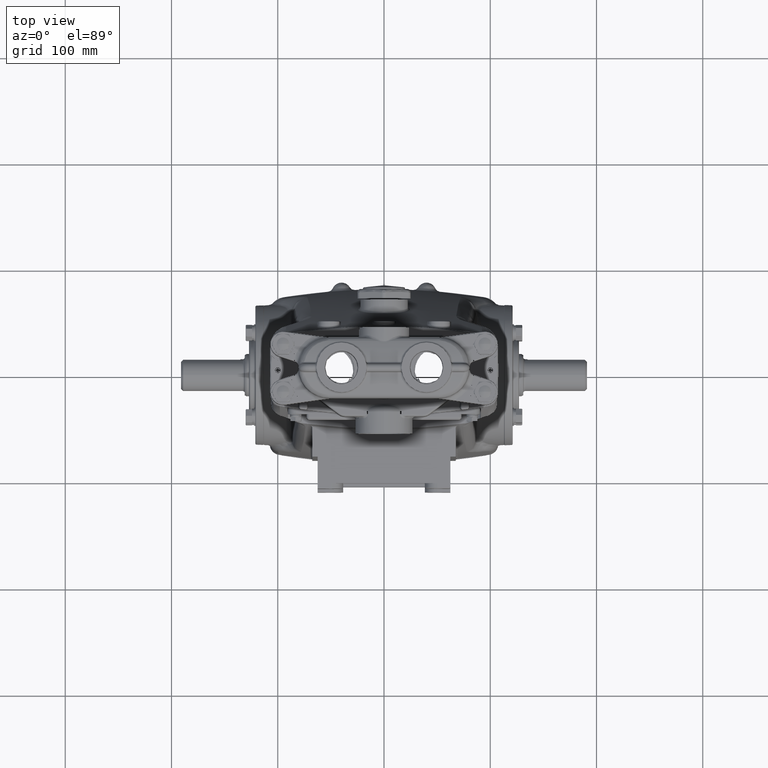
[diagram: clean part render]
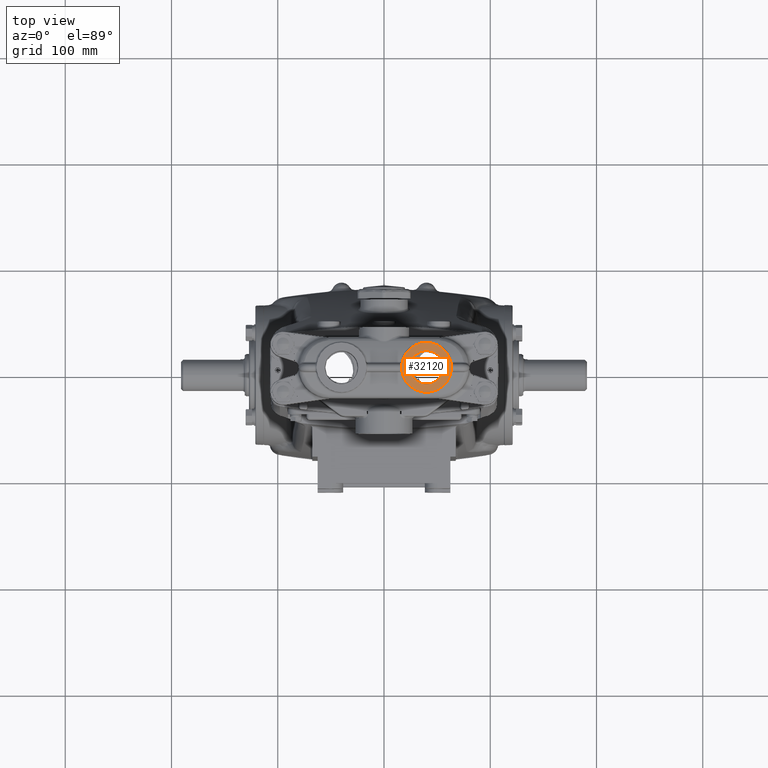
[diagram: same view with one face highlighted and labeled with its STEP entity id]
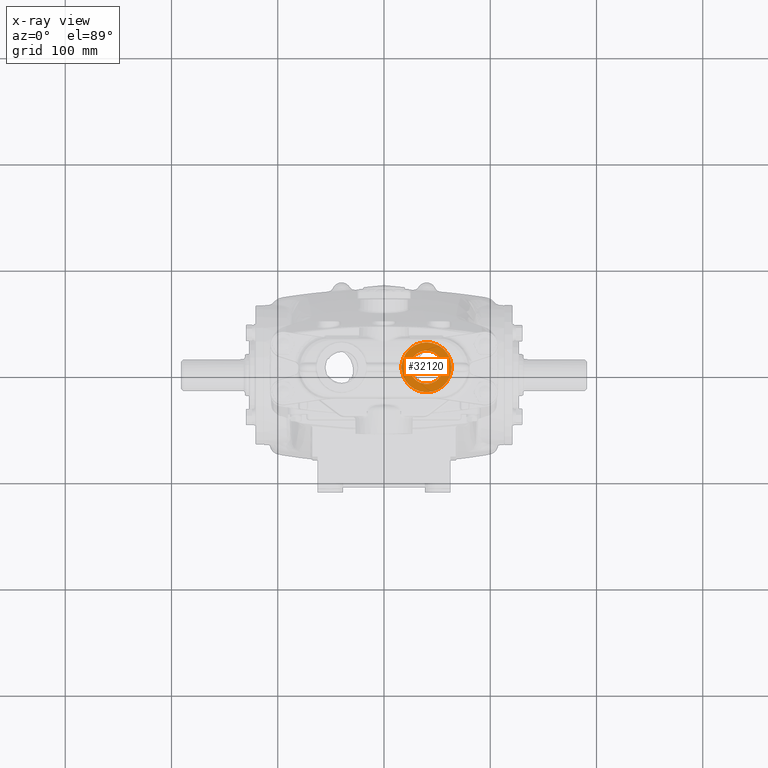
[diagram: x-ray of the same camera — body ghosted, the highlighted face saturated]
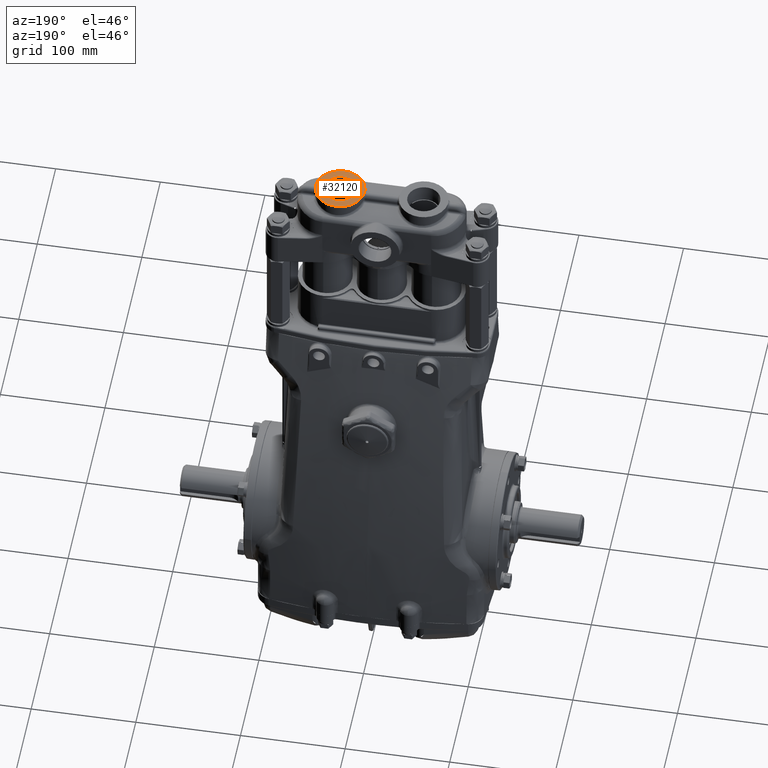
[diagram: same view with one face highlighted and labeled with its STEP entity id]
A machine part, top view. The second image highlights one B-rep face of the part: STEP entity #32120.
The next image is the same camera in x-ray: the body ghosted, the highlighted face saturated — about 0% of this face is hidden behind the body in this view.
A second angle (auxiliary view) of the same face is appended — the face is thin or edge-on in the first view.
In plain terms, the highlighted planar face has unit normal (0, 0, 1).
Its self-contained STEP definition (entity closure, byte-faithful):
#468 = CARTESIAN_POINT ( 'NONE',  ( 2.492141042688304609, -0.1203345415676274621, 16.60629921259842590 ) ) ;
#1937 = ORIENTED_EDGE ( 'NONE', *, *, #88783, .T. ) ;
#10169 = CIRCLE ( 'NONE', #89471, 0.6183874999999998678 ) ;
#11503 = VERTEX_POINT ( 'NONE', #18393 ) ;
#14126 = DIRECTION ( 'NONE',  ( 1.000000000000000000, 0.000000000000000000, 0.000000000000000000 ) ) ;
#14779 = DIRECTION ( 'NONE',  ( 1.000000000000000000, 0.000000000000000000, -0.000000000000000000 ) ) ;
#15677 = ORIENTED_EDGE ( 'NONE', *, *, #52820, .T. ) ;
#16347 = DIRECTION ( 'NONE',  ( 0.000000000000000000, 0.000000000000000000, 1.000000000000000000 ) ) ;
#17243 = CARTESIAN_POINT ( 'NONE',  ( 1.574803149606299302, -2.731847993664263218E-16, 16.60629921259842590 ) ) ;
#17877 = CARTESIAN_POINT ( 'NONE',  ( 1.574803149606299302, -2.731847993664263218E-16, 16.60629921259842590 ) ) ;
#18393 = CARTESIAN_POINT ( 'NONE',  ( 0.9564156496062994339, -1.974541721156529370E-16, 16.60629921259842590 ) ) ;
#19780 = AXIS2_PLACEMENT_3D ( 'NONE', #48599, #72898, #81869 ) ;
#21165 = EDGE_CURVE ( 'NONE', #11503, #64035, #10169, .T. ) ;
#24810 = ORIENTED_EDGE ( 'NONE', *, *, #103329, .T. ) ;
#26009 = EDGE_LOOP ( 'NONE', ( #15677, #1937, #24810, #50842 ) ) ;
#27393 = DIRECTION ( 'NONE',  ( 1.000000000000000000, 0.000000000000000000, 0.000000000000000000 ) ) ;
#32120 = ADVANCED_FACE ( 'NONE', ( #47012, #95624 ), #62828, .T. ) ;
#33092 = ORIENTED_EDGE ( 'NONE', *, *, #21165, .F. ) ;
#33221 = CARTESIAN_POINT ( 'NONE',  ( 1.574803149606299302, -2.731847993664263218E-16, 16.60629921259842590 ) ) ;
#33587 = DIRECTION ( 'NONE',  ( 0.000000000000000000, 0.000000000000000000, 1.000000000000000000 ) ) ;
#42478 = DIRECTION ( 'NONE',  ( 1.000000000000000000, 0.000000000000000000, 0.000000000000000000 ) ) ;
#43192 = AXIS2_PLACEMENT_3D ( 'NONE', #95094, #16347, #14779 ) ;
#44817 = DIRECTION ( 'NONE',  ( -0.000000000000000000, -0.000000000000000000, 1.000000000000000000 ) ) ;
#46768 = CIRCLE ( 'NONE', #19780, 0.9251968503937008093 ) ;
#47012 = FACE_BOUND ( 'NONE', #74447, .T. ) ;
#48599 = CARTESIAN_POINT ( 'NONE',  ( 1.574803149606299302, -2.731847993664263218E-16, 16.60629921259842590 ) ) ;
#49156 = ORIENTED_EDGE ( 'NONE', *, *, #68420, .F. ) ;
#50746 = CIRCLE ( 'NONE', #52494, 0.9251968503937008093 ) ;
#50842 = ORIENTED_EDGE ( 'NONE', *, *, #90121, .T. ) ;
#51305 = AXIS2_PLACEMENT_3D ( 'NONE', #33221, #92411, #27393 ) ;
#52494 = AXIS2_PLACEMENT_3D ( 'NONE', #82152, #58874, #42478 ) ;
#52820 = EDGE_CURVE ( 'NONE', #71907, #74181, #50746, .T. ) ;
#53882 = CARTESIAN_POINT ( 'NONE',  ( 0.6574652565243518376, -0.1203345415680720787, 16.60629921259842590 ) ) ;
#54506 = CARTESIAN_POINT ( 'NONE',  ( 2.193190649606299392, -2.731847993664263218E-16, 16.60629921259842590 ) ) ;
#58874 = DIRECTION ( 'NONE',  ( 0.000000000000000000, 0.000000000000000000, 1.000000000000000000 ) ) ;
#59081 = CIRCLE ( 'NONE', #86077, 0.9251968503937008093 ) ;
#62828 = PLANE ( 'NONE',  #43192 ) ;
#64035 = VERTEX_POINT ( 'NONE', #54506 ) ;
#67660 = CIRCLE ( 'NONE', #81154, 0.9251968503937008093 ) ;
#68142 = VERTEX_POINT ( 'NONE', #53882 ) ;
#68420 = EDGE_CURVE ( 'NONE', #64035, #11503, #81708, .T. ) ;
#71907 = VERTEX_POINT ( 'NONE', #99358 ) ;
#72898 = DIRECTION ( 'NONE',  ( 0.000000000000000000, 0.000000000000000000, 1.000000000000000000 ) ) ;
#73891 = DIRECTION ( 'NONE',  ( 1.000000000000000000, 0.000000000000000000, 0.000000000000000000 ) ) ;
#74181 = VERTEX_POINT ( 'NONE', #91558 ) ;
#74447 = EDGE_LOOP ( 'NONE', ( #49156, #33092 ) ) ;
#81154 = AXIS2_PLACEMENT_3D ( 'NONE', #17877, #98194, #73891 ) ;
#81701 = DIRECTION ( 'NONE',  ( 1.000000000000000000, 0.000000000000000000, 0.000000000000000000 ) ) ;
#81708 = CIRCLE ( 'NONE', #51305, 0.6183874999999998678 ) ;
#81869 = DIRECTION ( 'NONE',  ( 1.000000000000000000, 0.000000000000000000, 0.000000000000000000 ) ) ;
#82152 = CARTESIAN_POINT ( 'NONE',  ( 1.574803149606299302, -2.731847993664263218E-16, 16.60629921259842590 ) ) ;
#86077 = AXIS2_PLACEMENT_3D ( 'NONE', #17243, #33587, #81701 ) ;
#87754 = VERTEX_POINT ( 'NONE', #468 ) ;
#88783 = EDGE_CURVE ( 'NONE', #74181, #68142, #67660, .T. ) ;
#89471 = AXIS2_PLACEMENT_3D ( 'NONE', #93952, #44817, #14126 ) ;
#90121 = EDGE_CURVE ( 'NONE', #87754, #71907, #59081, .T. ) ;
#91558 = CARTESIAN_POINT ( 'NONE',  ( 0.6574652565242936619, 0.1203345415676272401, 16.60629921259842590 ) ) ;
#92411 = DIRECTION ( 'NONE',  ( -0.000000000000000000, -0.000000000000000000, 1.000000000000000000 ) ) ;
#93952 = CARTESIAN_POINT ( 'NONE',  ( 1.574803149606299302, -2.731847993664263218E-16, 16.60629921259842590 ) ) ;
#95094 = CARTESIAN_POINT ( 'NONE',  ( 1.574803149606299302, -2.731847993664263218E-16, 16.60629921259842590 ) ) ;
#95624 = FACE_OUTER_BOUND ( 'NONE', #26009, .T. ) ;
#98194 = DIRECTION ( 'NONE',  ( 0.000000000000000000, 0.000000000000000000, 1.000000000000000000 ) ) ;
#99358 = CARTESIAN_POINT ( 'NONE',  ( 2.492141042688246877, 0.1203345415680719399, 16.60629921259842590 ) ) ;
#103329 = EDGE_CURVE ( 'NONE', #68142, #87754, #46768, .T. ) ;